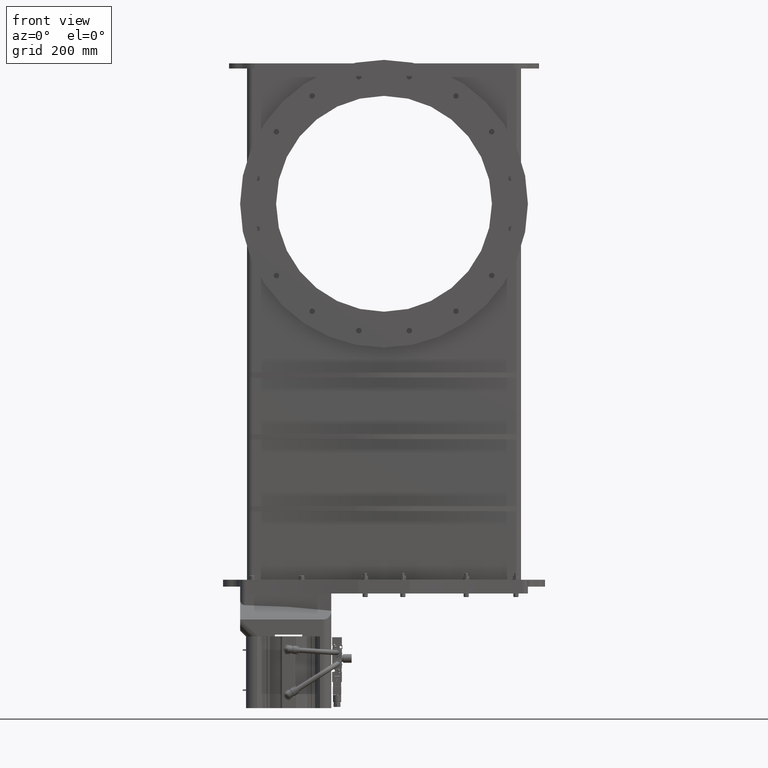
[diagram: clean part render]
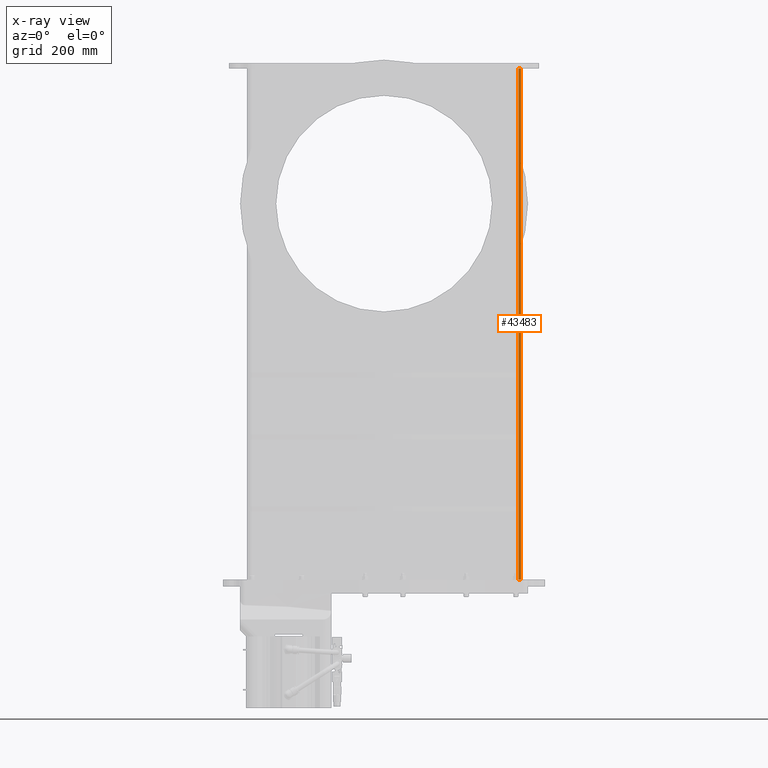
[diagram: x-ray — body ghosted, one internal face saturated and labeled with its STEP entity id]
A machine part, front view, then the same camera in x-ray: the body is ghosted and one INTERNAL B-rep face — a face not visible from any outside direction — is saturated and labeled: STEP entity #43483.
In plain terms, the highlighted planar face has unit normal (-0, 1, 0).
Its self-contained STEP definition (entity closure, byte-faithful):
#363 = VECTOR ( 'NONE', #37000, 39.37007874015748100 ) ;
#2365 = LINE ( 'NONE', #22567, #28967 ) ;
#5998 = DIRECTION ( 'NONE',  ( -9.106159978880872500E-017, 1.000000000000000000, 0.0000000000000000000 ) ) ;
#8169 = CARTESIAN_POINT ( 'NONE',  ( 9.999999999999998200, -75.31101309069576600, 42.27682794774445800 ) ) ;
#8541 = DIRECTION ( 'NONE',  ( 1.000000000000000000, 9.106159978880871200E-017, 0.0000000000000000000 ) ) ;
#15551 = LINE ( 'NONE', #61681, #363 ) ;
#15611 = CARTESIAN_POINT ( 'NONE',  ( 9.812500000000000000, -75.31101309069576600, 42.27682794774445800 ) ) ;
#18029 = EDGE_LOOP ( 'NONE', ( #22320, #42832, #40469, #31073 ) ) ;
#20096 = EDGE_CURVE ( 'NONE', #48817, #51984, #2365, .T. ) ;
#22320 = ORIENTED_EDGE ( 'NONE', *, *, #40532, .T. ) ;
#22442 = VECTOR ( 'NONE', #8541, 39.37007874015748100 ) ;
#22567 = CARTESIAN_POINT ( 'NONE',  ( 9.812500000000000000, -75.31101309069576600, 42.27682794774445800 ) ) ;
#26212 = DIRECTION ( 'NONE',  ( 1.000000000000000000, 9.106159978880871200E-017, 0.0000000000000000000 ) ) ;
#26262 = VERTEX_POINT ( 'NONE', #8169 ) ;
#28967 = VECTOR ( 'NONE', #46959, 39.37007874015748100 ) ;
#31032 = CARTESIAN_POINT ( 'NONE',  ( 9.999999999999998200, -75.31101309069576600, 4.964327947744453500 ) ) ;
#31073 = ORIENTED_EDGE ( 'NONE', *, *, #20096, .T. ) ;
#31379 = AXIS2_PLACEMENT_3D ( 'NONE', #15611, #5998, #40228 ) ;
#31521 = LINE ( 'NONE', #42976, #22442 ) ;
#34250 = LINE ( 'NONE', #41276, #35773 ) ;
#35208 = CARTESIAN_POINT ( 'NONE',  ( 9.812500000000000000, -75.31101309069576600, 4.964327947744453500 ) ) ;
#35635 = EDGE_CURVE ( 'NONE', #48817, #26262, #34250, .T. ) ;
#35773 = VECTOR ( 'NONE', #26212, 39.37007874015748100 ) ;
#37000 = DIRECTION ( 'NONE',  ( -0.0000000000000000000, -0.0000000000000000000, -1.000000000000000000 ) ) ;
#40228 = DIRECTION ( 'NONE',  ( -1.000000000000000000, -9.106159978880872500E-017, 0.0000000000000000000 ) ) ;
#40469 = ORIENTED_EDGE ( 'NONE', *, *, #35635, .F. ) ;
#40532 = EDGE_CURVE ( 'NONE', #51984, #49834, #31521, .T. ) ;
#41276 = CARTESIAN_POINT ( 'NONE',  ( 9.812500000000000000, -75.31101309069576600, 42.27682794774445800 ) ) ;
#42832 = ORIENTED_EDGE ( 'NONE', *, *, #54569, .F. ) ;
#42976 = CARTESIAN_POINT ( 'NONE',  ( 9.812500000000000000, -75.31101309069576600, 4.964327947744453500 ) ) ;
#43483 = ADVANCED_FACE ( 'NONE', ( #58405 ), #54883, .F. ) ;
#46959 = DIRECTION ( 'NONE',  ( -0.0000000000000000000, -0.0000000000000000000, -1.000000000000000000 ) ) ;
#48817 = VERTEX_POINT ( 'NONE', #50189 ) ;
#49834 = VERTEX_POINT ( 'NONE', #31032 ) ;
#50189 = CARTESIAN_POINT ( 'NONE',  ( 9.812500000000000000, -75.31101309069576600, 42.27682794774445800 ) ) ;
#51984 = VERTEX_POINT ( 'NONE', #35208 ) ;
#54569 = EDGE_CURVE ( 'NONE', #26262, #49834, #15551, .T. ) ;
#54883 = PLANE ( 'NONE',  #31379 ) ;
#58405 = FACE_OUTER_BOUND ( 'NONE', #18029, .T. ) ;
#61681 = CARTESIAN_POINT ( 'NONE',  ( 9.999999999999998200, -75.31101309069576600, 42.27682794774445800 ) ) ;